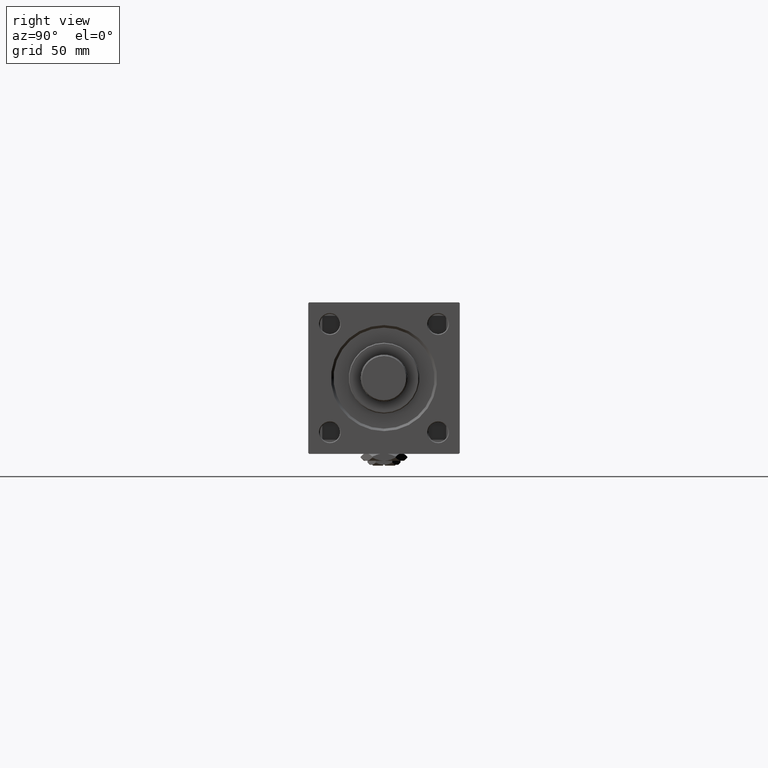
[diagram: clean part render]
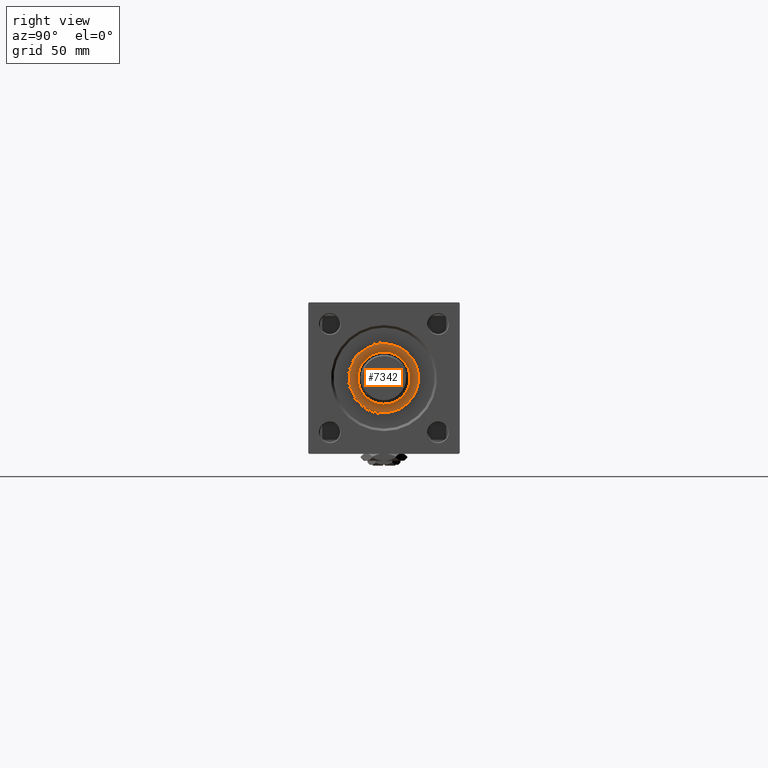
[diagram: same view with one face highlighted and labeled with its STEP entity id]
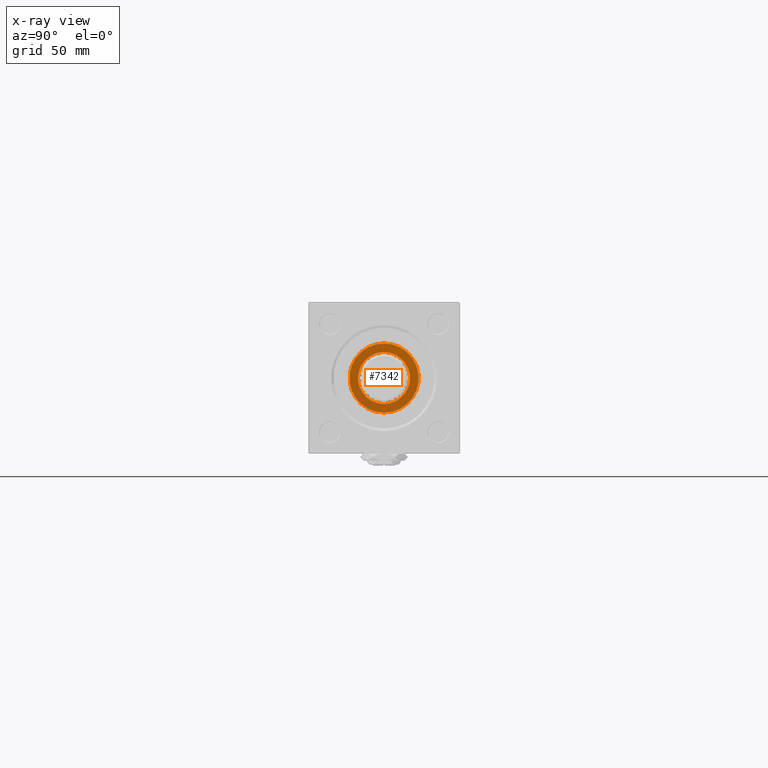
[diagram: x-ray of the same camera — body ghosted, the highlighted face saturated]
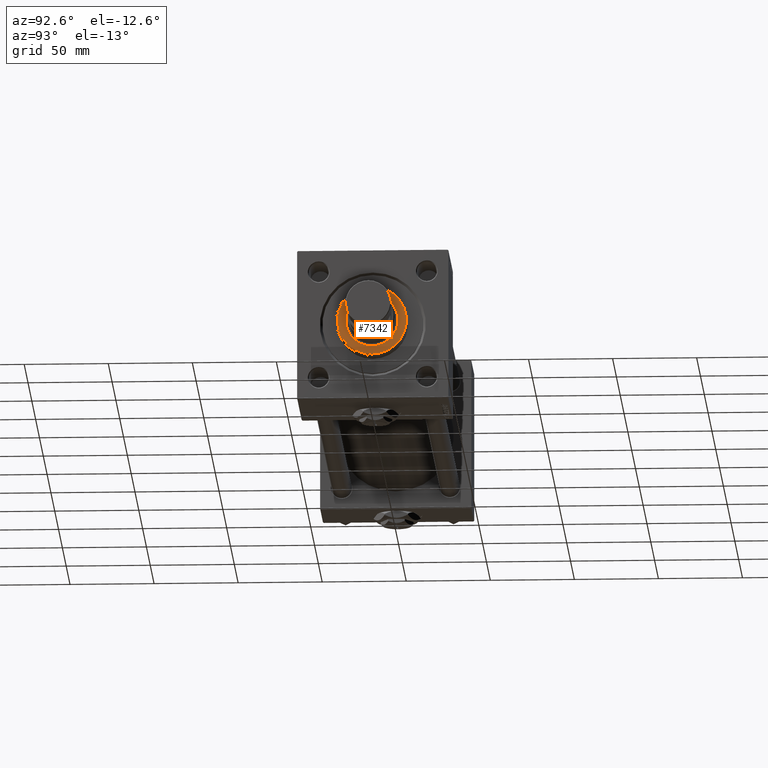
[diagram: same view with one face highlighted and labeled with its STEP entity id]
A machine part, right view. The second image highlights one B-rep face of the part: STEP entity #7342.
The next image is the same camera in x-ray: the body ghosted, the highlighted face saturated — about 0% of this face is hidden behind the body in this view.
A second angle (auxiliary view) of the same face is appended — the face is thin or edge-on in the first view.
In plain terms, the highlighted planar face has unit normal (1, 0, 0).
Its self-contained STEP definition (entity closure, byte-faithful):
#1483 = EDGE_LOOP ( 'NONE', ( #17277, #29563 ) ) ;
#1539 = CARTESIAN_POINT ( 'NONE',  ( 0.000000000000000000, 0.000000000000000000, 39.69999999999999574 ) ) ;
#2326 = DIRECTION ( 'NONE',  ( 0.000000000000000000, 0.000000000000000000, 1.000000000000000000 ) ) ;
#4117 = CARTESIAN_POINT ( 'NONE',  ( 0.000000000000000000, 0.000000000000000000, 39.69999999999999574 ) ) ;
#5922 = AXIS2_PLACEMENT_3D ( 'NONE', #1539, #2326, #30115 ) ;
#6892 = VERTEX_POINT ( 'NONE', #32659 ) ;
#7342 = ADVANCED_FACE ( 'NONE', ( #22618, #10843 ), #43407, .T. ) ;
#8145 = VERTEX_POINT ( 'NONE', #48052 ) ;
#8814 = CARTESIAN_POINT ( 'NONE',  ( 15.50000000000000000, 0.000000000000000000, 39.69999999999999574 ) ) ;
#10843 = FACE_OUTER_BOUND ( 'NONE', #23583, .T. ) ;
#11478 = CIRCLE ( 'NONE', #15755, 15.50000000000000000 ) ;
#12172 = EDGE_CURVE ( 'NONE', #23323, #6892, #37640, .T. ) ;
#12744 = CIRCLE ( 'NONE', #5922, 15.50000000000000000 ) ;
#14030 = CIRCLE ( 'NONE', #43884, 20.50000000000000355 ) ;
#15755 = AXIS2_PLACEMENT_3D ( 'NONE', #4117, #28424, #36956 ) ;
#17277 = ORIENTED_EDGE ( 'NONE', *, *, #19566, .F. ) ;
#18106 = DIRECTION ( 'NONE',  ( 1.000000000000000000, 0.000000000000000000, 0.000000000000000000 ) ) ;
#18350 = CARTESIAN_POINT ( 'NONE',  ( 0.000000000000000000, 0.000000000000000000, 39.69999999999999574 ) ) ;
#18923 = CARTESIAN_POINT ( 'NONE',  ( 0.000000000000000000, 0.000000000000000000, 39.69999999999999574 ) ) ;
#19566 = EDGE_CURVE ( 'NONE', #25455, #8145, #12744, .T. ) ;
#22618 = FACE_BOUND ( 'NONE', #1483, .T. ) ;
#23118 = AXIS2_PLACEMENT_3D ( 'NONE', #18350, #34620, #50888 ) ;
#23323 = VERTEX_POINT ( 'NONE', #34943 ) ;
#23583 = EDGE_LOOP ( 'NONE', ( #39617, #29852 ) ) ;
#23985 = DIRECTION ( 'NONE',  ( 1.000000000000000000, 0.000000000000000000, 0.000000000000000000 ) ) ;
#25455 = VERTEX_POINT ( 'NONE', #8814 ) ;
#28424 = DIRECTION ( 'NONE',  ( 0.000000000000000000, 0.000000000000000000, 1.000000000000000000 ) ) ;
#29563 = ORIENTED_EDGE ( 'NONE', *, *, #38983, .F. ) ;
#29852 = ORIENTED_EDGE ( 'NONE', *, *, #38919, .T. ) ;
#30115 = DIRECTION ( 'NONE',  ( 1.000000000000000000, 0.000000000000000000, 0.000000000000000000 ) ) ;
#32659 = CARTESIAN_POINT ( 'NONE',  ( 20.50000000000000355, 2.541142108230758269E-15, 39.69999999999999574 ) ) ;
#34620 = DIRECTION ( 'NONE',  ( 0.000000000000000000, 0.000000000000000000, 1.000000000000000000 ) ) ;
#34943 = CARTESIAN_POINT ( 'NONE',  ( -20.50000000000000355, 0.000000000000000000, 39.69999999999999574 ) ) ;
#36956 = DIRECTION ( 'NONE',  ( 1.000000000000000000, 0.000000000000000000, 0.000000000000000000 ) ) ;
#37640 = CIRCLE ( 'NONE', #44444, 20.50000000000000355 ) ;
#38651 = CARTESIAN_POINT ( 'NONE',  ( 0.000000000000000000, 0.000000000000000000, 39.69999999999999574 ) ) ;
#38910 = DIRECTION ( 'NONE',  ( 0.000000000000000000, 0.000000000000000000, 1.000000000000000000 ) ) ;
#38919 = EDGE_CURVE ( 'NONE', #6892, #23323, #14030, .T. ) ;
#38983 = EDGE_CURVE ( 'NONE', #8145, #25455, #11478, .T. ) ;
#39617 = ORIENTED_EDGE ( 'NONE', *, *, #12172, .T. ) ;
#43407 = PLANE ( 'NONE',  #23118 ) ;
#43884 = AXIS2_PLACEMENT_3D ( 'NONE', #38651, #38910, #18106 ) ;
#44444 = AXIS2_PLACEMENT_3D ( 'NONE', #18923, #51732, #23985 ) ;
#48052 = CARTESIAN_POINT ( 'NONE',  ( -15.50000000000000000, 1.898202538678397557E-15, 39.69999999999999574 ) ) ;
#50888 = DIRECTION ( 'NONE',  ( 1.000000000000000000, 0.000000000000000000, -0.000000000000000000 ) ) ;
#51732 = DIRECTION ( 'NONE',  ( 0.000000000000000000, 0.000000000000000000, 1.000000000000000000 ) ) ;